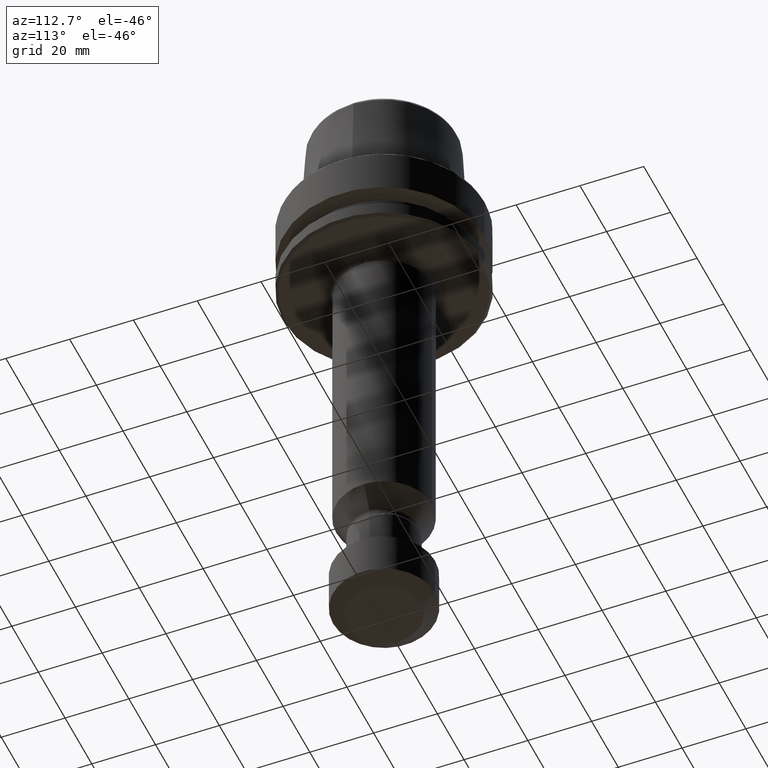
[diagram: clean part render]
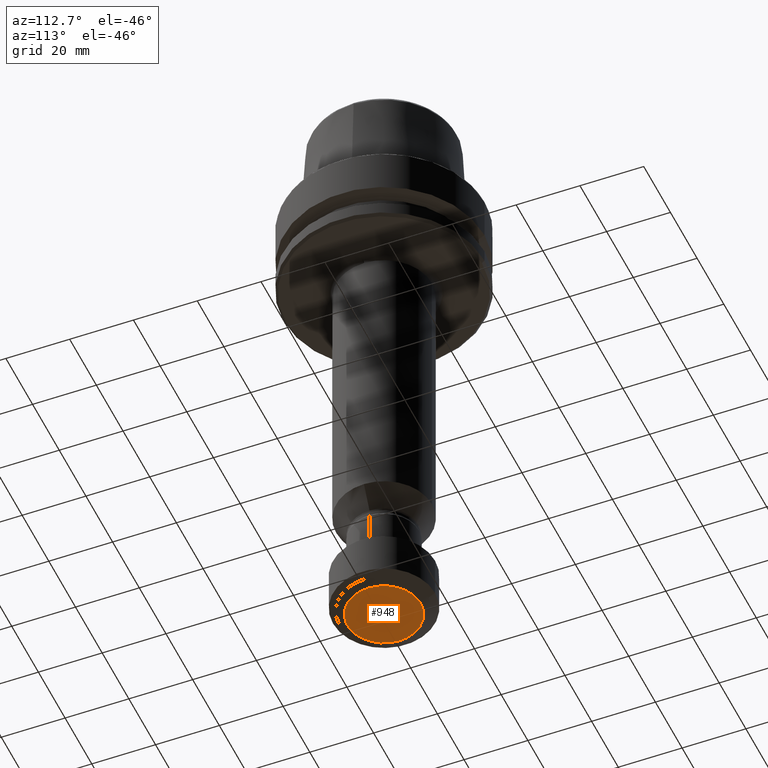
[diagram: same view with one face highlighted and labeled with its STEP entity id]
A machine part, auxiliary view. The second image highlights one B-rep face of the part: STEP entity #948.
In plain terms, the highlighted planar face has unit normal (0, 0, 1).
Its self-contained STEP definition (entity closure, byte-faithful):
#157 = CARTESIAN_POINT ( 'NONE',  ( 1.571214155878250900E-029, 0.0000000000000000000, -160.0000000000000000 ) ) ;
#360 = DIRECTION ( 'NONE',  ( 1.206764157201257300E-015, -0.0000000000000000000, -1.000000000000000000 ) ) ;
#381 = DIRECTION ( 'NONE',  ( 1.000000000000000000, 0.0000000000000000000, 0.0000000000000000000 ) ) ;
#386 = CIRCLE ( 'NONE', #535, 11.49999999999997700 ) ;
#412 = AXIS2_PLACEMENT_3D ( 'NONE', #2565, #1829, #526 ) ;
#526 = DIRECTION ( 'NONE',  ( 1.000000000000000000, 0.0000000000000000000, 0.0000000000000000000 ) ) ;
#535 = AXIS2_PLACEMENT_3D ( 'NONE', #157, #1691, #381 ) ;
#646 = EDGE_CURVE ( 'NONE', #2687, #2613, #1687, .T. ) ;
#748 = EDGE_CURVE ( 'NONE', #2613, #2687, #386, .T. ) ;
#948 = ADVANCED_FACE ( 'NONE', ( #973 ), #2570, .F. ) ;
#973 = FACE_OUTER_BOUND ( 'NONE', #1669, .T. ) ;
#1175 = ORIENTED_EDGE ( 'NONE', *, *, #748, .T. ) ;
#1282 = CARTESIAN_POINT ( 'NONE',  ( -11.49999999999997700, 1.561424668912872400E-015, -160.0000000000000000 ) ) ;
#1669 = EDGE_LOOP ( 'NONE', ( #1175, #2160 ) ) ;
#1674 = CARTESIAN_POINT ( 'NONE',  ( 1.571214155878250900E-029, 0.0000000000000000000, -160.0000000000000000 ) ) ;
#1687 = CIRCLE ( 'NONE', #2269, 11.49999999999997700 ) ;
#1691 = DIRECTION ( 'NONE',  ( 1.206764157201257300E-015, -0.0000000000000000000, -1.000000000000000000 ) ) ;
#1790 = CARTESIAN_POINT ( 'NONE',  ( 11.49999999999997700, 0.0000000000000000000, -160.0000000000000000 ) ) ;
#1829 = DIRECTION ( 'NONE',  ( 0.0000000000000000000, 0.0000000000000000000, 1.000000000000000000 ) ) ;
#1885 = DIRECTION ( 'NONE',  ( 1.000000000000000000, 0.0000000000000000000, 0.0000000000000000000 ) ) ;
#2160 = ORIENTED_EDGE ( 'NONE', *, *, #646, .T. ) ;
#2269 = AXIS2_PLACEMENT_3D ( 'NONE', #1674, #360, #1885 ) ;
#2565 = CARTESIAN_POINT ( 'NONE',  ( -11.63800000000000000, -11.63800000000000000, -160.0000000000000000 ) ) ;
#2570 = PLANE ( 'NONE',  #412 ) ;
#2613 = VERTEX_POINT ( 'NONE', #1790 ) ;
#2687 = VERTEX_POINT ( 'NONE', #1282 ) ;